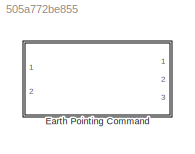
MODEL slx_505a772be855
KIND library
CONFIG AbsTol = auto
CONFIG FixedStep = auto
CONFIG MaxStep = auto
CONFIG MinStep = auto
CONFIG RelTol = 1e-3
CONFIG SampleTimeConstraint = Unconstrained
CONFIG Solver = ode45
CONFIG SolverMode = SingleTasking
CONFIG SolverName = ode45
CONFIG StartTime = 0.0
CONFIG StopTime = 10.0
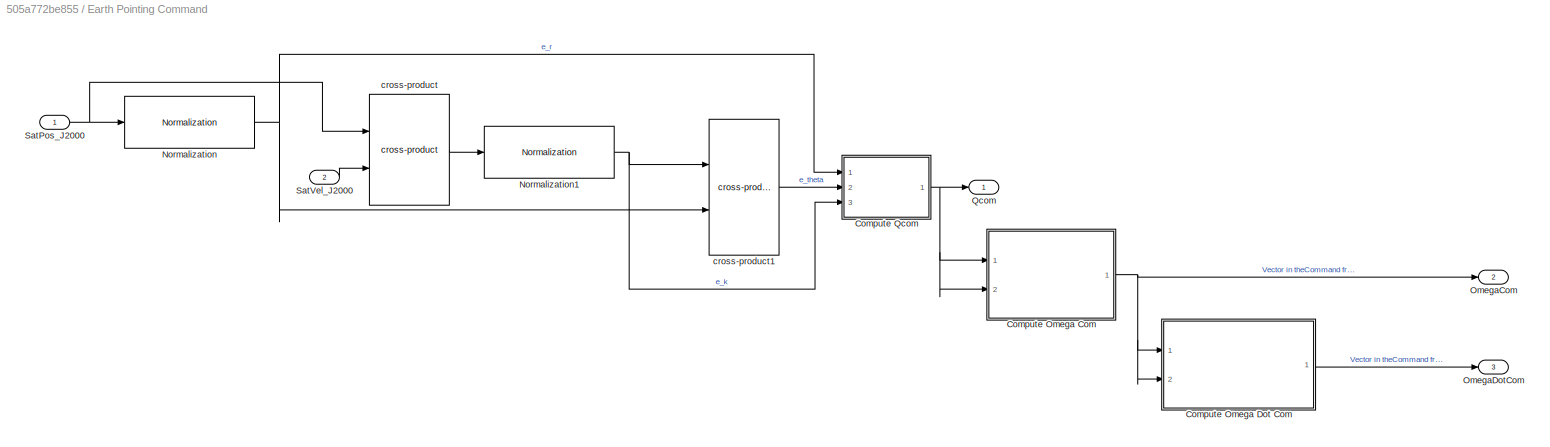
BLOCK [SubSystem] Earth Pointing Command
  Ports = [2, 3]
  RequestExecContextInheritance = off
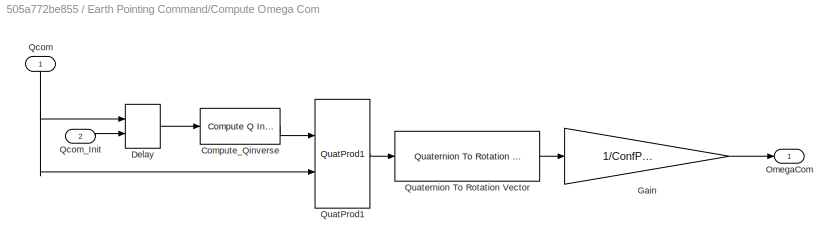
BLOCK [SubSystem] Earth Pointing Command/Compute Omega Com
  Ports = [2, 1]
  RequestExecContextInheritance = off
BLOCK [Reference] Earth Pointing Command/Compute Omega Com/Compute_Qinverse  REF=Qinverse/Compute Q Inverse
  Ports = [1, 1]
  SourceBlock = Qinverse/Compute Q Inverse
  SourceType = SubSystem
BLOCK [Delay] Earth Pointing Command/Compute Omega Com/Delay
  DelayLength = 1
  InitialCondition = confEstim.InitQsat
  InitialConditionSource = Input port
  InputPortMap = u0,p4
  Ports = [2, 1]
  SampleTime = ConfParam.confOrbit.dt
BLOCK [Gain] Earth Pointing Command/Compute Omega Com/Gain
  Gain = 1/ConfParam.confOrbit.dt
  OutDataTypeStr = Inherit: Inherit via internal rule
  ParamDataTypeStr = Inherit: Inherit via internal rule
  SaturateOnIntegerOverflow = off
BLOCK [Outport] Earth Pointing Command/Compute Omega Com/OmegaCom
  IconDisplay = Port number
BLOCK [Inport] Earth Pointing Command/Compute Omega Com/Qcom
  IconDisplay = Port number
BLOCK [Inport] Earth Pointing Command/Compute Omega Com/Qcom_Init
  IconDisplay = Port number
  Port = 2
BLOCK [Reference] Earth Pointing Command/Compute Omega Com/QuatProd1  REF=Qprod/QuatProd1
  Ports = [2, 1]
  SourceBlock = Qprod/QuatProd1
  SourceType = SubSystem
BLOCK [Reference] Earth Pointing Command/Compute Omega Com/Quaternion To Rotation Vector  REF=Quat2Rot/Quaternion To Rotation Vector
  Ports = [1, 1]
  SourceBlock = Quat2Rot/Quaternion To Rotation Vector
  SourceType = SubSystem
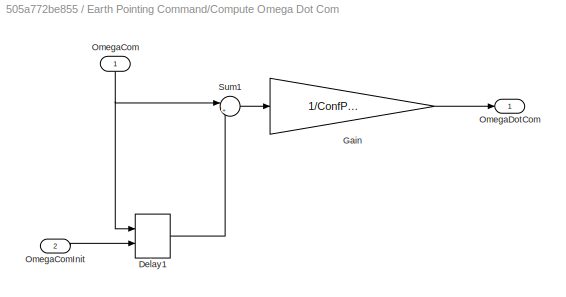
BLOCK [SubSystem] Earth Pointing Command/Compute Omega Dot Com
  Ports = [2, 1]
  RequestExecContextInheritance = off
BLOCK [Delay] Earth Pointing Command/Compute Omega Dot Com/Delay1
  DelayLength = 1
  InitialCondition = confEstim.InitQsat
  InitialConditionSource = Input port
  InputPortMap = u0,p4
  Ports = [2, 1]
  SampleTime = ConfParam.confOrbit.dt
BLOCK [Gain] Earth Pointing Command/Compute Omega Dot Com/Gain
  Gain = 1/ConfParam.confOrbit.dt
  OutDataTypeStr = Inherit: Inherit via internal rule
  ParamDataTypeStr = Inherit: Inherit via internal rule
  SaturateOnIntegerOverflow = off
BLOCK [Inport] Earth Pointing Command/Compute Omega Dot Com/OmegaCom
  IconDisplay = Port number
BLOCK [Inport] Earth Pointing Command/Compute Omega Dot Com/OmegaComInit
  IconDisplay = Port number
  Port = 2
BLOCK [Outport] Earth Pointing Command/Compute Omega Dot Com/OmegaDotCom
  IconDisplay = Port number
BLOCK [Sum] Earth Pointing Command/Compute Omega Dot Com/Sum1
  IconShape = round
  InputSameDT = off
  Inputs = |+-
  OutDataTypeStr = Inherit: Inherit via internal rule
  Ports = [2, 1]
  SaturateOnIntegerOverflow = off
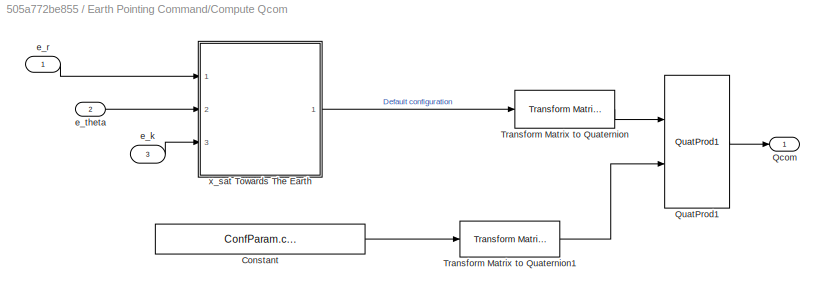
BLOCK [SubSystem] Earth Pointing Command/Compute Qcom
  Ports = [3, 1]
  RequestExecContextInheritance = off
BLOCK [Constant] Earth Pointing Command/Compute Qcom/Constant
  Value = ConfParam.confEarthPointing.M
BLOCK [Outport] Earth Pointing Command/Compute Qcom/Qcom
  IconDisplay = Port number
BLOCK [Reference] Earth Pointing Command/Compute Qcom/QuatProd1  REF=Qprod/QuatProd1
  Ports = [2, 1]
  SourceBlock = Qprod/QuatProd1
  SourceType = SubSystem
BLOCK [Reference] Earth Pointing Command/Compute Qcom/Transform Matrix to Quaternion  REF=Mat2Quat/Transform Matrix to Quaternion
  Ports = [1, 1]
  SourceBlock = Mat2Quat/Transform Matrix to Quaternion
  SourceType = SubSystem
BLOCK [Reference] Earth Pointing Command/Compute Qcom/Transform Matrix to Quaternion1  REF=Mat2Quat/Transform Matrix to Quaternion
  Ports = [1, 1]
  SourceBlock = Mat2Quat/Transform Matrix to Quaternion
  SourceType = SubSystem
BLOCK [Inport] Earth Pointing Command/Compute Qcom/e_k
  IconDisplay = Port number
  Port = 3
BLOCK [Inport] Earth Pointing Command/Compute Qcom/e_r
  IconDisplay = Port number
BLOCK [Inport] Earth Pointing Command/Compute Qcom/e_theta
  IconDisplay = Port number
  Port = 2
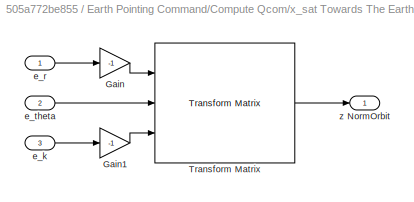
BLOCK [SubSystem] Earth Pointing Command/Compute Qcom/x_sat Towards The Earth
  Ports = [3, 1]
  RequestExecContextInheritance = off
BLOCK [Gain] Earth Pointing Command/Compute Qcom/x_sat Towards The Earth/Gain
  Gain = -1
  OutDataTypeStr = Inherit: Inherit via internal rule
  ParamDataTypeStr = Inherit: Inherit via internal rule
  SaturateOnIntegerOverflow = off
BLOCK [Gain] Earth Pointing Command/Compute Qcom/x_sat Towards The Earth/Gain1
  Gain = -1
  OutDataTypeStr = Inherit: Inherit via internal rule
  ParamDataTypeStr = Inherit: Inherit via internal rule
  SaturateOnIntegerOverflow = off
BLOCK [Reference] Earth Pointing Command/Compute Qcom/x_sat Towards The Earth/Transform Matrix  REF=TransformMatrix/Transform Matrix
  Ports = [3, 1]
  SourceBlock = TransformMatrix/Transform Matrix
  SourceType = SubSystem
BLOCK [Inport] Earth Pointing Command/Compute Qcom/x_sat Towards The Earth/e_k
  IconDisplay = Port number
  Port = 3
BLOCK [Inport] Earth Pointing Command/Compute Qcom/x_sat Towards The Earth/e_r
  IconDisplay = Port number
BLOCK [Inport] Earth Pointing Command/Compute Qcom/x_sat Towards The Earth/e_theta
  IconDisplay = Port number
  Port = 2
BLOCK [Outport] Earth Pointing Command/Compute Qcom/x_sat Towards The Earth/z NormOrbit
  IconDisplay = Port number
BLOCK [Reference] Earth Pointing Command/Normalization  REF=Normalization/Normalization
  Ports = [1, 1]
  SourceBlock = Normalization/Normalization
  SourceType = SubSystem
BLOCK [Reference] Earth Pointing Command/Normalization1  REF=Normalization/Normalization
  Ports = [1, 1]
  SourceBlock = Normalization/Normalization
  SourceType = SubSystem
BLOCK [Outport] Earth Pointing Command/OmegaCom
  IconDisplay = Port number
  Port = 2
BLOCK [Outport] Earth Pointing Command/OmegaDotCom
  IconDisplay = Port number
  Port = 3
BLOCK [Outport] Earth Pointing Command/Qcom
  IconDisplay = Port number
BLOCK [Inport] Earth Pointing Command/SatPos_J2000
  IconDisplay = Port number
BLOCK [Inport] Earth Pointing Command/SatVel_J2000
  IconDisplay = Port number
  Port = 2
BLOCK [Reference] Earth Pointing Command/cross-product  REF=CrossProd/cross-product
  Ports = [2, 1]
  SourceBlock = CrossProd/cross-product
  SourceType = SubSystem
BLOCK [Reference] Earth Pointing Command/cross-product1  REF=CrossProd/cross-product
  Ports = [2, 1]
  SourceBlock = CrossProd/cross-product
  SourceType = SubSystem
LINE Earth Pointing Command/Compute Omega Com/Compute_Qinverse:1 -> Earth Pointing Command/Compute Omega Com/QuatProd1:1
LINE Earth Pointing Command/Compute Omega Com/Delay:1 -> Earth Pointing Command/Compute Omega Com/Compute_Qinverse:1
LINE Earth Pointing Command/Compute Omega Com/Gain:1 -> Earth Pointing Command/Compute Omega Com/OmegaCom:1
NET Earth Pointing Command/Compute Omega Com/Qcom:1 -> Earth Pointing Command/Compute Omega Com/Delay:1, Earth Pointing Command/Compute Omega Com/QuatProd1:2
LINE Earth Pointing Command/Compute Omega Com/Qcom_Init:1 -> Earth Pointing Command/Compute Omega Com/Delay:2
LINE Earth Pointing Command/Compute Omega Com/QuatProd1:1 -> Earth Pointing Command/Compute Omega Com/Quaternion To Rotation Vector:1
LINE Earth Pointing Command/Compute Omega Com/Quaternion To Rotation Vector:1 -> Earth Pointing Command/Compute Omega Com/Gain:1
NET Earth Pointing Command/Compute Omega Com:1 -> Earth Pointing Command/Compute Omega Dot Com:1, Earth Pointing Command/Compute Omega Dot Com:2, Earth Pointing Command/OmegaCom:1
LINE Earth Pointing Command/Compute Omega Dot Com/Delay1:1 -> Earth Pointing Command/Compute Omega Dot Com/Sum1:2
LINE Earth Pointing Command/Compute Omega Dot Com/Gain:1 -> Earth Pointing Command/Compute Omega Dot Com/OmegaDotCom:1
NET Earth Pointing Command/Compute Omega Dot Com/OmegaCom:1 -> Earth Pointing Command/Compute Omega Dot Com/Delay1:1, Earth Pointing Command/Compute Omega Dot Com/Sum1:1
LINE Earth Pointing Command/Compute Omega Dot Com/OmegaComInit:1 -> Earth Pointing Command/Compute Omega Dot Com/Delay1:2
LINE Earth Pointing Command/Compute Omega Dot Com/Sum1:1 -> Earth Pointing Command/Compute Omega Dot Com/Gain:1
LINE Earth Pointing Command/Compute Omega Dot Com:1 -> Earth Pointing Command/OmegaDotCom:1
LINE Earth Pointing Command/Compute Qcom/Constant:1 -> Earth Pointing Command/Compute Qcom/Transform Matrix to Quaternion1:1
LINE Earth Pointing Command/Compute Qcom/QuatProd1:1 -> Earth Pointing Command/Compute Qcom/Qcom:1
LINE Earth Pointing Command/Compute Qcom/Transform Matrix to Quaternion1:1 -> Earth Pointing Command/Compute Qcom/QuatProd1:2
LINE Earth Pointing Command/Compute Qcom/Transform Matrix to Quaternion:1 -> Earth Pointing Command/Compute Qcom/QuatProd1:1
LINE Earth Pointing Command/Compute Qcom/e_k:1 -> Earth Pointing Command/Compute Qcom/x_sat Towards The Earth:3
LINE Earth Pointing Command/Compute Qcom/e_r:1 -> Earth Pointing Command/Compute Qcom/x_sat Towards The Earth:1
LINE Earth Pointing Command/Compute Qcom/e_theta:1 -> Earth Pointing Command/Compute Qcom/x_sat Towards The Earth:2
LINE Earth Pointing Command/Compute Qcom/x_sat Towards The Earth/Gain1:1 -> Earth Pointing Command/Compute Qcom/x_sat Towards The Earth/Transform Matrix:3
LINE Earth Pointing Command/Compute Qcom/x_sat Towards The Earth/Gain:1 -> Earth Pointing Command/Compute Qcom/x_sat Towards The Earth/Transform Matrix:1
LINE Earth Pointing Command/Compute Qcom/x_sat Towards The Earth/Transform Matrix:1 -> Earth Pointing Command/Compute Qcom/x_sat Towards The Earth/z NormOrbit:1
LINE Earth Pointing Command/Compute Qcom/x_sat Towards The Earth/e_k:1 -> Earth Pointing Command/Compute Qcom/x_sat Towards The Earth/Gain1:1
LINE Earth Pointing Command/Compute Qcom/x_sat Towards The Earth/e_r:1 -> Earth Pointing Command/Compute Qcom/x_sat Towards The Earth/Gain:1
LINE Earth Pointing Command/Compute Qcom/x_sat Towards The Earth/e_theta:1 -> Earth Pointing Command/Compute Qcom/x_sat Towards The Earth/Transform Matrix:2
LINE Earth Pointing Command/Compute Qcom/x_sat Towards The Earth:1 -> Earth Pointing Command/Compute Qcom/Transform Matrix to Quaternion:1
NET Earth Pointing Command/Compute Qcom:1 -> Earth Pointing Command/Compute Omega Com:1, Earth Pointing Command/Compute Omega Com:2, Earth Pointing Command/Qcom:1
NET Earth Pointing Command/Normalization1:1 -> Earth Pointing Command/Compute Qcom:3, Earth Pointing Command/cross-product1:1
NET Earth Pointing Command/Normalization:1 -> Earth Pointing Command/Compute Qcom:1, Earth Pointing Command/cross-product1:2
NET Earth Pointing Command/SatPos_J2000:1 -> Earth Pointing Command/Normalization:1, Earth Pointing Command/cross-product:1
LINE Earth Pointing Command/SatVel_J2000:1 -> Earth Pointing Command/cross-product:2
LINE Earth Pointing Command/cross-product1:1 -> Earth Pointing Command/Compute Qcom:2
LINE Earth Pointing Command/cross-product:1 -> Earth Pointing Command/Normalization1:1
note: NET lines group one-source signal fan-out (src -> all destinations, sorted); 1:1 wires keep LINE
